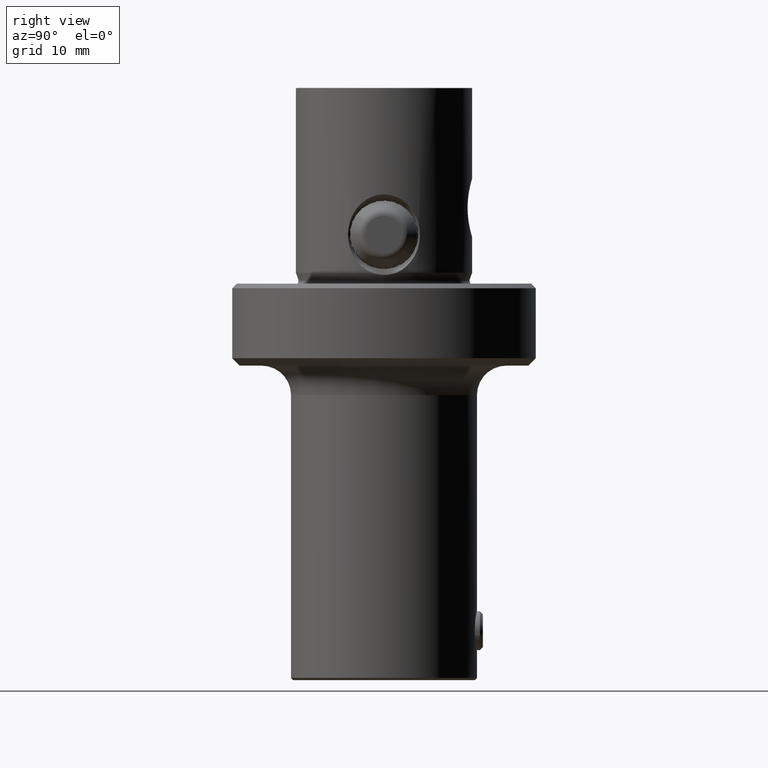
[diagram: clean part render]
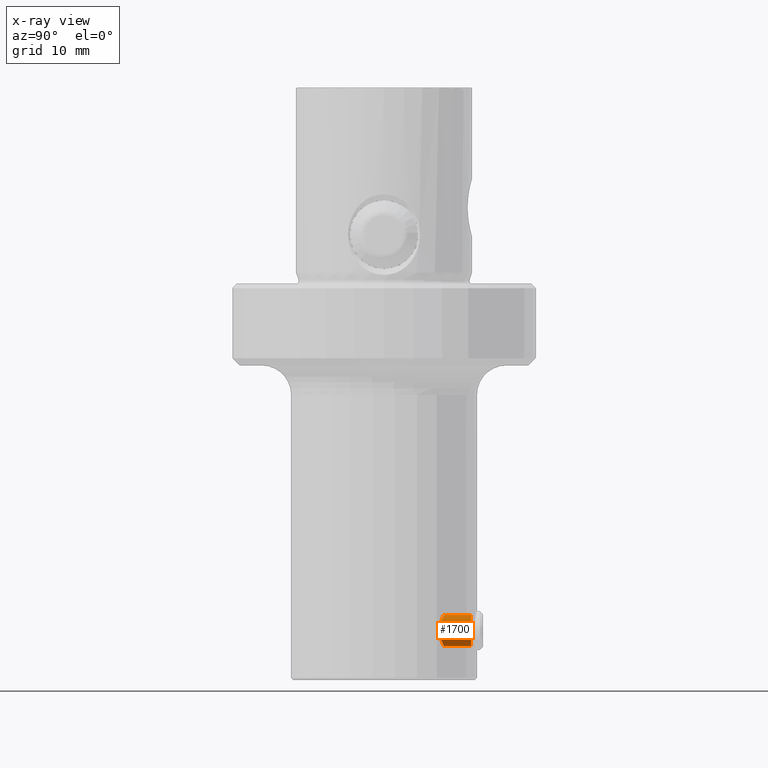
[diagram: x-ray — body ghosted, one internal face saturated and labeled with its STEP entity id]
A machine part, right view, then the same camera in x-ray: the body is ghosted and one INTERNAL B-rep face — a face not visible from any outside direction — is saturated and labeled: STEP entity #1700.
In plain terms, the highlighted cylindrical surface (edge-blend (fillet) strip) has radius 1.6 mm, axis along (-0, 1, -0).
Its self-contained STEP definition (entity closure, byte-faithful):
#744=EDGE_CURVE('NONE',#830,#950,#2060,.T.);
#754=EDGE_CURVE('NONE',#1628,#830,#2070,.F.);
#830=VERTEX_POINT('NONE',#2154);
#938=EDGE_CURVE('NONE',#1628,#1262,#2274,.T.);
#950=VERTEX_POINT('NONE',#2288);
#1262=VERTEX_POINT('NONE',#2637);
#1628=VERTEX_POINT('NONE',#3047);
#1674=EDGE_CURVE('NONE',#950,#1262,#3101,.T.);
#1700=ADVANCED_FACE('NONE',(#3130),#3131,.F.);
#2060=LINE('',#3541,#3542);
#2070=B_SPLINE_CURVE_WITH_KNOTS('',3,(#3602,#3603,#3604,#3605,#3606,#3607,#3608,#3609,#3610,#3611,#3612,#3613,#3614,#3615,#3616,#3617,#3618,#3619,#3620,#3621,#3622,#3623,#3624,#3625,#3626,#3627,#3628,#3629,#3630,#3631,#3632,#3633,#3634,#3635,#3636,#3637,#3638,#3639),.UNSPECIFIED.,.F.,.F.,(4,2,2,2,2,2,2,2,2,2,2,2,2,2,2,2,2,2,4),(-5.15015766242841,-4.90677739470591,-4.6264471748931,-4.32397537748496,-4.00198465081282,-3.83610596167034,-3.22570956209225,-3.07953787753217,-2.55462090290977,-2.48832029140873,-2.35228761242163,-2.07479910621367,-1.77835392140174,-1.45878296384759,-1.29294050126046,-1.12742557743932,-0.810849546503642,-0.513239547482356,-0.00463543586736803),.UNSPECIFIED.);
#2154=CARTESIAN_POINT('',(1.7972566820498E-010,6.15000005852308,-33.8500000145126));
#2274=LINE('',#3995,#3996);
#2288=CARTESIAN_POINT('',(-2.2655217545714E-016,8.90551488286689,-33.85));
#2637=CARTESIAN_POINT('',(0.0,8.90551488286689,-37.05));
#3047=CARTESIAN_POINT('',(1.68831962299443E-016,6.15000010341024,-37.05));
#3101=CIRCLE('',#5633,1.6);
#3130=FACE_OUTER_BOUND('',#5667,.T.);
#3131=CYLINDRICAL_SURFACE('',#5668,1.6);
#3541=CARTESIAN_POINT('',(-1.9593701661158E-016,11.1609574967712,-33.85));
#3542=VECTOR('',#6392,1000.0);
#3602=CARTESIAN_POINT('',(1.7972566820498E-010,6.15000005852308,-33.8500000145126));
#3603=CARTESIAN_POINT('',(0.0815135922705392,6.14999020821996,-33.8500000145218));
#3604=CARTESIAN_POINT('',(0.162475175309532,6.14574969531351,-33.8562262372044));
#3605=CARTESIAN_POINT('',(0.334131729848732,6.12944760037627,-33.8825189958779));
#3606=CARTESIAN_POINT('',(0.424202802970886,6.11632523954878,-33.9045185889919));
#3607=CARTESIAN_POINT('',(0.605403676501459,6.08244105098844,-33.9656359892405));
#3608=CARTESIAN_POINT('',(0.695789144103473,6.06121891669244,-34.0058772311863));
#3609=CARTESIAN_POINT('',(0.872431225498823,6.01232762387619,-34.1047276902698));
#3610=CARTESIAN_POINT('',(0.957853932070771,5.98438967908638,-34.164242531536));
#3611=CARTESIAN_POINT('',(1.07700787013949,5.93921416966256,-34.2655667092479));
#3612=CARTESIAN_POINT('',(1.11558482068295,5.92325999510557,-34.3018576458813));
#3613=CARTESIAN_POINT('',(1.2862060483569,5.84850485277224,-34.4788917089602));
#3614=CARTESIAN_POINT('',(1.3955491565565,5.79069418203885,-34.642831826611));
#3615=CARTESIAN_POINT('',(1.49129126611096,5.73718517916645,-34.868371838277));
#3616=CARTESIAN_POINT('',(1.50791809827187,5.72768860923504,-34.9129153749271));
#3617=CARTESIAN_POINT('',(1.57523853827538,5.68866770786145,-35.1213873950326));
#3618=CARTESIAN_POINT('',(1.6018769481096,5.67154025850884,-35.2932846874929));
#3619=CARTESIAN_POINT('',(1.59964742853463,5.67317685661438,-35.4901969107202));
#3620=CARTESIAN_POINT('',(1.59894029444329,5.67364884590078,-35.5122684714209));
#3621=CARTESIAN_POINT('',(1.59538976862411,5.67594832200175,-35.5795508086783));
#3622=CARTESIAN_POINT('',(1.59108632111747,5.67867668276325,-35.6245999225645));
#3623=CARTESIAN_POINT('',(1.57225974078295,5.69033822336648,-35.7606304049016));
#3624=CARTESIAN_POINT('',(1.55184781590277,5.70273001948263,-35.8500861126193));
#3625=CARTESIAN_POINT('',(1.49450677885216,5.73604192457913,-36.0295885381432));
#3626=CARTESIAN_POINT('',(1.45673552026499,5.75738126864803,-36.118666530966));
#3627=CARTESIAN_POINT('',(1.36293456294918,5.80749011095069,-36.2944483254301));
#3628=CARTESIAN_POINT('',(1.30584331047035,5.83663949614567,-36.3801705929425));
#3629=CARTESIAN_POINT('',(1.20790586457186,5.88263046950992,-36.5006075132383));
#3630=CARTESIAN_POINT('',(1.17244417123137,5.89864797648641,-36.540036401684));
#3631=CARTESIAN_POINT('',(1.09787113754839,5.93064131325896,-36.6151062566995));
#3632=CARTESIAN_POINT('',(1.05868121889259,5.94627346468114,-36.6508419457804));
#3633=CARTESIAN_POINT('',(0.939170803452026,5.9903667764118,-36.7493465198136));
#3634=CARTESIAN_POINT('',(0.854203100110947,6.01754674982267,-36.8068035232236));
#3635=CARTESIAN_POINT('',(0.678865638047862,6.06506477826707,-36.9020642581437));
#3636=CARTESIAN_POINT('',(0.589280331613146,6.08566672393297,-36.940750486289));
#3637=CARTESIAN_POINT('',(0.337096718701737,6.1316865676864,-37.0230127075643));
#3638=CARTESIAN_POINT('',(0.16949968569198,6.14990415258487,-37.05));
#3639=CARTESIAN_POINT('',(1.68831962299443E-016,6.15000010341024,-37.05));
#3995=CARTESIAN_POINT('',(0.0,11.1609574967712,-37.05));
#3996=VECTOR('',#6631,1000.0);
#5633=AXIS2_PLACEMENT_3D('',#7682,#7683,#7684);
#5667=EDGE_LOOP('',(#7720,#7721,#7722,#7723));
#5668=AXIS2_PLACEMENT_3D('',#7724,#7725,#7726);
#6392=DIRECTION('',(0.0,1.0,0.0));
#6631=DIRECTION('',(0.0,1.0,0.0));
#7682=CARTESIAN_POINT('',(0.0,8.90551488286689,-35.45));
#7683=DIRECTION('',(0.0,1.0,0.0));
#7684=DIRECTION('',(0.0,0.0,-1.0));
#7720=ORIENTED_EDGE('',*,*,#754,.T.);
#7721=ORIENTED_EDGE('',*,*,#744,.T.);
#7722=ORIENTED_EDGE('',*,*,#1674,.T.);
#7723=ORIENTED_EDGE('',*,*,#938,.F.);
#7724=CARTESIAN_POINT('',(0.0,11.1609574967712,-35.45));
#7725=DIRECTION('',(-0.0,1.0,-0.0));
#7726=DIRECTION('',(0.0,0.0,-1.0));